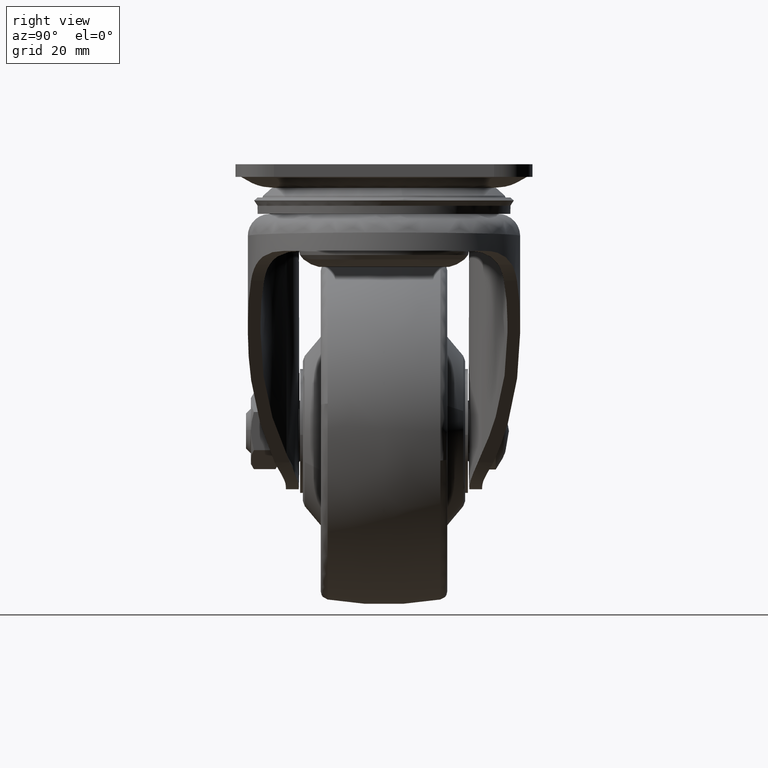
[diagram: clean part render]
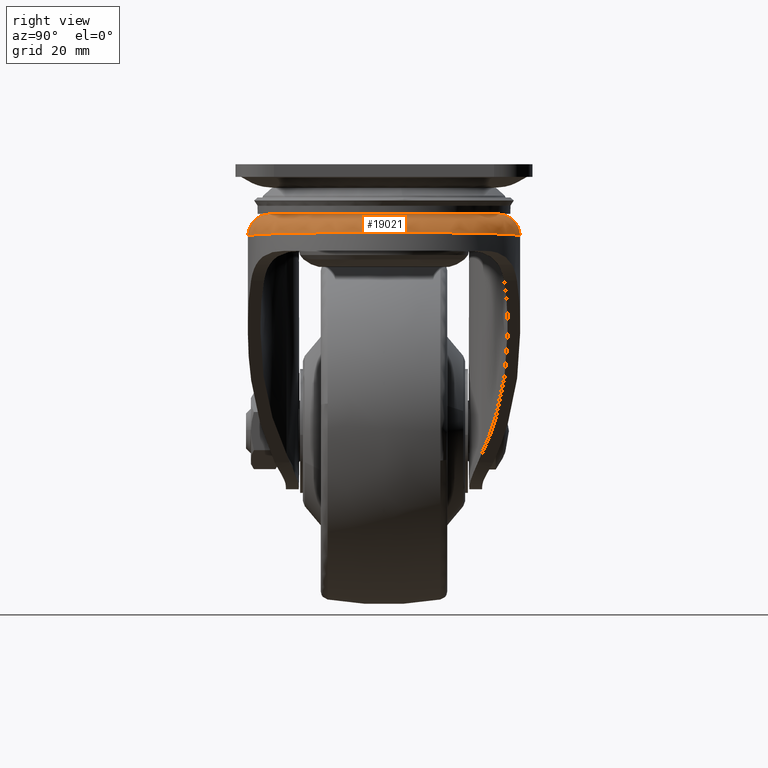
[diagram: same view with one face highlighted and labeled with its STEP entity id]
A machine part, right view. The second image highlights one B-rep face of the part: STEP entity #19021.
In plain terms, the highlighted face is a freeform B-spline surface patch.
Its self-contained STEP definition (entity closure, byte-faithful):
#17920=CARTESIAN_POINT('',(-0.371908392632483,-20.746666820178351,-9.038143999999999));
#17921=VERTEX_POINT('',#17920);
#17935=CARTESIAN_POINT('',(-0.371908392632533,20.746666820178351,-9.038143999999999));
#17936=VERTEX_POINT('',#17935);
#17937=CARTESIAN_POINT('',(-0.371908392632483,-20.746666820178351,-9.038143999999999));
#17938=CARTESIAN_POINT('',(0.310111829313165,-20.734656609830100,-9.038144000000001));
#17939=CARTESIAN_POINT('',(0.986389070026729,-20.690357468507340,-9.038144000000020));
#17940=CARTESIAN_POINT('',(2.327787379291789,-20.539035513552289,-9.038144000000024));
#17941=CARTESIAN_POINT('',(2.992907637295672,-20.432008142754530,-9.038144000000020));
#17942=CARTESIAN_POINT('',(4.312006746370648,-20.155312743828951,-9.038144000000024));
#17943=CARTESIAN_POINT('',(4.965986218059602,-19.985648205019050,-9.038144000000019));
#17944=CARTESIAN_POINT('',(5.776314059998352,-19.733387569091700,-9.038144000000024));
#17945=CARTESIAN_POINT('',(5.938021508014015,-19.680921971287479,-9.038144000000020));
#17946=CARTESIAN_POINT('',(6.260712274947871,-19.571919483522549,-9.038144000000020));
#17947=CARTESIAN_POINT('',(6.421754884003594,-19.515354365793630,-9.038144000000020));
#17948=CARTESIAN_POINT('',(6.901244632892142,-19.340439021349791,-9.038144000000020));
#17949=CARTESIAN_POINT('',(7.216900154775730,-19.216597069536672,-9.038144000000022));
#17950=CARTESIAN_POINT('',(8.152056588210165,-18.823742300994731,-9.038144000000022));
#17951=CARTESIAN_POINT('',(9.367491343316548,-18.243154913261350,-9.038144000000020));
#17952=CARTESIAN_POINT('',(10.520862944870990,-17.550482445976321,-9.038144000000020));
#17953=CARTESIAN_POINT('',(11.362279168001390,-16.988334331418301,-9.038144000000024));
#17954=CARTESIAN_POINT('',(11.638809140308229,-16.793832252205409,-9.038144000000020));
#17955=CARTESIAN_POINT('',(12.047585011716020,-16.491208756801999,-9.038144000000024));
#17956=CARTESIAN_POINT('',(12.182839993853580,-16.388521697266491,-9.038144000000020));
#17957=CARTESIAN_POINT('',(12.451319241664100,-16.179480136187539,-9.038144000000022));
#17958=CARTESIAN_POINT('',(12.584726993621601,-16.072972550384531,-9.038144000000019));
#17959=CARTESIAN_POINT('',(13.243716359350589,-15.533547669759480,-9.038144000000024));
#17960=CARTESIAN_POINT('',(13.745703946693940,-15.079781266730670,-9.038144000000020));
#17961=CARTESIAN_POINT('',(14.700722061925980,-14.129074833428101,-9.038144000000024));
#17962=CARTESIAN_POINT('',(15.153749198556721,-13.632131812515039,-9.038144000000017));
#17963=CARTESIAN_POINT('',(16.010889133507490,-12.595109817821580,-9.038144000000020));
#17964=CARTESIAN_POINT('',(16.415005057247829,-12.055033600246979,-9.038144000000019));
#17965=CARTESIAN_POINT('',(16.888740019221370,-11.352238928578229,-9.038144000000022));
#17966=CARTESIAN_POINT('',(16.981912920928089,-11.210291855222851,-9.038144000000019));
#17967=CARTESIAN_POINT('',(17.165074589125592,-10.923589723954990,-9.038144000000020));
#17968=CARTESIAN_POINT('',(17.255186156278981,-10.778628534644231,-9.038144000000022));
#17969=CARTESIAN_POINT('',(17.519647754276772,-10.341204070595360,-9.038144000000017));
#17970=CARTESIAN_POINT('',(17.688033460243531,-10.046416596260700,-9.038144000000019));
#17971=CARTESIAN_POINT('',(18.169874809759829,-9.152720936074458,-9.038144000000022));
#17972=CARTESIAN_POINT('',(18.750264049210131,-7.936281918196361,-9.038144000000022));
#17973=CARTESIAN_POINT('',(19.208550969658418,-6.670965681906028,-9.038144000000022));
#17974=CARTESIAN_POINT('',(19.505928584421380,-5.703429702171705,-9.038144000000022));
#17975=CARTESIAN_POINT('',(19.597318012715402,-5.377820832211666,-9.038144000000024));
#17976=CARTESIAN_POINT('',(19.722601074543672,-4.884683587551843,-9.038144000000019));
#17977=CARTESIAN_POINT('',(19.762394326124060,-4.719516813533725,-9.038144000000022));
#17978=CARTESIAN_POINT('',(19.838001006572899,-4.387590153544157,-9.038144000000019));
#17979=CARTESIAN_POINT('',(19.873846769291930,-4.220655644612763,-9.038144000000019));
#17980=CARTESIAN_POINT('',(20.042333218423870,-3.385371898940528,-9.038144000000026));
#17981=CARTESIAN_POINT('',(20.244204662840438,-2.041781170649532,-9.038144000000020));
#17982=CARTESIAN_POINT('',(20.312324603654758,-0.684092183101558,-9.038144000000020));
#17983=CARTESIAN_POINT('',(20.312435390379129,0.680765401885571,-9.038144000000024));
#17984=CARTESIAN_POINT('',(20.278488159685079,1.357420897028287,-9.038144000000022));
#17985=CARTESIAN_POINT('',(20.144998784287029,2.699505021124899,-9.038144000000024));
#17986=CARTESIAN_POINT('',(20.045449721321130,3.364947744408189,-9.038144000000022));
#17987=CARTESIAN_POINT('',(19.781201515590709,4.684712803392505,-9.038144000000024));
#17988=CARTESIAN_POINT('',(19.616504594464580,5.339035518302297,-9.038144000000022));
#17989=CARTESIAN_POINT('',(19.369027409387382,6.149837228847268,-9.038144000000022));
#17990=CARTESIAN_POINT('',(19.317446911827510,6.311641674517488,-9.038144000000020));
#17991=CARTESIAN_POINT('',(19.210073941024170,6.634531628870683,-9.038144000000020));
#17992=CARTESIAN_POINT('',(19.154198245064119,6.795842654728318,-9.038144000000020));
#17993=CARTESIAN_POINT('',(18.980903691396261,7.276702750768489,-9.038144000000019));
#17994=CARTESIAN_POINT('',(18.857875780785541,7.593121407276388,-9.038144000000020));
#17995=CARTESIAN_POINT('',(18.466771984821200,8.530176107110156,-9.038144000000024));
#17996=CARTESIAN_POINT('',(18.176727707134368,9.138639511977621,-9.038144000000024));
#17997=CARTESIAN_POINT('',(17.539223940579550,10.323752677950189,-9.038144000000022));
#17998=CARTESIAN_POINT('',(17.191762562970229,10.900401392507829,-9.038144000000024));
#17999=CARTESIAN_POINT('',(16.627175156399659,11.741329200653910,-9.038144000000024));
#18000=CARTESIAN_POINT('',(16.431734216972409,12.017623955235280,-9.038144000000020));
#18001=CARTESIAN_POINT('',(16.127546116646570,12.425956221480810,-9.038144000000020));
#18002=CARTESIAN_POINT('',(16.024311459639279,12.561048199573440,-9.038144000000022));
#18003=CARTESIAN_POINT('',(15.814127919645831,12.829174111214151,-9.038144000000020));
#18004=CARTESIAN_POINT('',(15.707157527082790,12.962222589929100,-9.038144000000022));
#18005=CARTESIAN_POINT('',(15.165974356405631,13.618656190648380,-9.038144000000026));
#18006=CARTESIAN_POINT('',(14.710518363722260,14.118666719233079,-9.038144000000022));
#18007=CARTESIAN_POINT('',(13.756085961286230,15.070088444843741,-9.038144000000020));
#18008=CARTESIAN_POINT('',(13.257105395372200,15.521495000676460,-9.038144000000020));
#18009=CARTESIAN_POINT('',(12.215856410150231,16.375968485076630,-9.038144000000019));
#18010=CARTESIAN_POINT('',(11.673589613144131,16.779037225271619,-9.038144000000024));
#18011=CARTESIAN_POINT('',(10.968091030182640,17.251979496183310,-9.038144000000022));
#18012=CARTESIAN_POINT('',(10.825604967698309,17.345019815301711,-9.038144000000022));
#18013=CARTESIAN_POINT('',(10.537832104179950,17.527972863534739,-9.038144000000020));
#18014=CARTESIAN_POINT('',(10.392934671078310,17.617634795172670,-9.038144000000022));
#18015=CARTESIAN_POINT('',(9.956102736091994,17.880699509193668,-9.038144000000020));
#18016=CARTESIAN_POINT('',(9.661665518583043,18.048417202818960,-9.038144000000020));
#18017=CARTESIAN_POINT('',(8.768893755536045,18.529040880454492,-9.038144000000020));
#18018=CARTESIAN_POINT('',(8.161120548119010,18.819468541503440,-9.038144000000020));
#18019=CARTESIAN_POINT('',(6.920842939203745,19.341426132661940,-9.038144000000020));
#18020=CARTESIAN_POINT('',(6.288338025941770,19.572954843998069,-9.038144000000024));
#18021=CARTESIAN_POINT('',(5.320857389087798,19.875658153784929,-9.038144000000020));
#18022=CARTESIAN_POINT('',(4.995238028468505,19.969115079046450,-9.038144000000022));
#18023=CARTESIAN_POINT('',(4.337652689320697,20.140914358361702,-9.038144000000020));
#18024=CARTESIAN_POINT('',(4.005135046614682,20.219345446843501,-9.038144000000022));
#18025=CARTESIAN_POINT('',(3.006171538072016,20.429870821315351,-9.038144000000022));
#18026=CARTESIAN_POINT('',(1.666133430569654,20.645987493705789,-9.038144000000042));
#18027=CARTESIAN_POINT('',(0.310137121063629,20.734656164448520,-9.038143999999999));
#18028=CARTESIAN_POINT('',(-0.371908392632441,20.746666820178351,-9.038143999999999));
#18029=B_SPLINE_CURVE_WITH_KNOTS('',3,(#17937,#17938,#17939,#17940,#17941,#17942,#17943,#17944,#17945,#17946,#17947,#17948,#17949,#17950,#17951,#17952,#17953,#17954,#17955,#17956,#17957,#17958,#17959,#17960,#17961,#17962,#17963,#17964,#17965,#17966,#17967,#17968,#17969,#17970,#17971,#17972,#17973,#17974,#17975,#17976,#17977,#17978,#17979,#17980,#17981,#17982,#17983,#17984,#17985,#17986,#17987,#17988,#17989,#17990,#17991,#17992,#17993,#17994,#17995,#17996,#17997,#17998,#17999,#18000,#18001,#18002,#18003,#18004,#18005,#18006,#18007,#18008,#18009,#18010,#18011,#18012,#18013,#18014,#18015,#18016,#18017,#18018,#18019,#18020,#18021,#18022,#18023,#18024,#18025,#18026,#18027,#18028),.UNSPECIFIED.,.F.,.U.,(4,2,2,2,2,2,2,1,2,2,2,2,2,2,2,2,2,2,1,2,2,2,2,1,2,2,2,2,2,2,2,2,2,2,2,2,2,2,2,2,2,2,2,2,2,2,1,4),(0.0,0.031250000000000,0.062500000000000,0.093750000000000,0.101562500000000,0.109375000000000,0.125000000000000,0.156250000000000,0.187500000000000,0.203125000000000,0.210937500000000,0.218750000000000,0.250000000000000,0.281250000000000,0.312500000000000,0.320312500000000,0.328125000000000,0.343750000000000,0.375000000000000,0.406250000000000,0.421875000000000,0.429687500000000,0.437500000000000,0.468750000000000,0.500000000000000,0.531250000000000,0.562499999999999,0.593749999999999,0.601562499999999,0.609374999999999,0.624999999999999,0.656250000000000,0.687500000000000,0.703125000000000,0.710937500000000,0.718750000000000,0.750000000000000,0.781250000000000,0.812500000000000,0.820312500000000,0.828125000000000,0.843750000000000,0.875000000000000,0.906250000000000,0.921875000000000,0.937500000000000,0.968750000000000,1.0),.UNSPECIFIED.);
#18030=EDGE_CURVE('',#17921,#17936,#18029,.T.);
#18525=CARTESIAN_POINT('',(-1.150086656081544,-24.748593863731795,-13.106458537314747));
#18526=CARTESIAN_POINT('',(-1.046314038446236,-24.748998996138283,-13.103322531421039));
#18527=CARTESIAN_POINT('',(-0.942540284437133,-24.749404132981226,-13.100186491186129));
#18528=CARTESIAN_POINT('',(0.802192063702615,-24.756215637123482,-13.047460723527845));
#18529=CARTESIAN_POINT('',(2.417904087485707,-24.604729629375790,-13.000504789412899));
#18530=CARTESIAN_POINT('',(4.804352100191892,-24.149071065818276,-12.933473158029660));
#18531=CARTESIAN_POINT('',(5.593627742778120,-23.958840504122609,-12.911697151369129));
#18532=CARTESIAN_POINT('',(7.159421216708891,-23.499801099100790,-12.869216319199440));
#18533=CARTESIAN_POINT('',(7.939338854639607,-23.229305134187690,-12.848425079935165));
#18534=CARTESIAN_POINT('',(10.212152411560291,-22.314282544708675,-12.788790667951890));
#18535=CARTESIAN_POINT('',(11.651092559535567,-21.565046605806220,-12.752320625999994));
#18536=CARTESIAN_POINT('',(13.695697033276561,-20.233884012984149,-12.701844778034047));
#18537=CARTESIAN_POINT('',(14.358135113605792,-19.755374643928565,-12.685729161838447));
#18538=CARTESIAN_POINT('',(15.643238081771365,-18.725975334869439,-12.654860239220822));
#18539=CARTESIAN_POINT('',(16.256408930557360,-18.182562195514691,-12.640334930360098));
#18540=CARTESIAN_POINT('',(18.003800067514735,-16.474415194778611,-12.599398492305820));
#18541=CARTESIAN_POINT('',(19.049774999068362,-15.230107753338746,-12.575530961128145));
#18542=CARTESIAN_POINT('',(20.436340070823050,-13.201998496588487,-12.544385074449197));
#18543=CARTESIAN_POINT('',(20.869353394552252,-12.495468507101380,-12.534754561813651));
#18544=CARTESIAN_POINT('',(21.654679263849058,-11.057321835389057,-12.517411268723132));
#18545=CARTESIAN_POINT('',(22.009299654534068,-10.322946810699314,-12.509646154631350));
#18546=CARTESIAN_POINT('',(22.643830421295629,-8.824159802559336,-12.495827194754908));
#18547=CARTESIAN_POINT('',(22.923739440063354,-8.059747317421962,-12.489773608071006));
#18548=CARTESIAN_POINT('',(23.408020581244642,-6.500565111213447,-12.479341495420059));
#18549=CARTESIAN_POINT('',(23.612734850372750,-5.704125844950372,-12.474955784027435));
#18550=CARTESIAN_POINT('',(24.106734956038579,-3.278164835235056,-12.464398291787367));
#18551=CARTESIAN_POINT('',(24.271441369023897,-1.643261048234187,-12.460912018214428));
#18552=CARTESIAN_POINT('',(24.270256864476423,1.660846410992469,-12.460937171862552));
#18553=CARTESIAN_POINT('',(24.104434566332696,3.284609746860099,-12.464447717112410));
#18554=CARTESIAN_POINT('',(23.618225701155779,5.679554768212552,-12.474838309376324));
#18555=CARTESIAN_POINT('',(23.416276038796042,6.471034580542466,-12.479164187864912));
#18556=CARTESIAN_POINT('',(23.052140336121063,7.647757438932564,-12.487007448588768));
#18557=CARTESIAN_POINT('',(22.920139669606630,8.039307502940300,-12.489856827257722));
#18558=CARTESIAN_POINT('',(22.637350641550150,8.813149290484429,-12.495979261116243));
#18559=CARTESIAN_POINT('',(22.486805143811786,9.194979346874616,-12.499247017374840));
#18560=CARTESIAN_POINT('',(21.689267829046639,11.079195574034756,-12.516615521869829));
#18561=CARTESIAN_POINT('',(20.909135385396997,12.507501032253591,-12.533768063874456));
#18562=CARTESIAN_POINT('',(19.758010765737914,14.194889613365236,-12.559621571414924));
#18563=CARTESIAN_POINT('',(19.518908057832132,14.527422869643717,-12.565015138280600));
#18564=CARTESIAN_POINT('',(19.022661438266677,15.182439302821118,-12.576267019383835));
#18565=CARTESIAN_POINT('',(18.764990207719588,15.505475992322195,-12.582137540250219));
#18566=CARTESIAN_POINT('',(17.973069265246629,16.449119537044876,-12.600278905137271));
#18567=CARTESIAN_POINT('',(17.417755766169275,17.047484967265746,-12.613127907958621));
#18568=CARTESIAN_POINT('',(15.672274645591081,18.753201623444355,-12.654019443499566));
#18569=CARTESIAN_POINT('',(14.403314015484158,19.772018781299597,-12.684379576265931));
#18570=CARTESIAN_POINT('',(12.682363265479150,20.893910021088260,-12.726860885860756));
#18571=CARTESIAN_POINT('',(12.331933772217244,21.110201075362994,-12.735572067984782));
#18572=CARTESIAN_POINT('',(11.625059439459838,21.522930535473900,-12.753277145497165));
#18573=CARTESIAN_POINT('',(11.267738381730648,21.719951351087719,-12.762292584323351));
#18574=CARTESIAN_POINT('',(10.184334504027364,22.283471051807371,-12.789839644963269));
#18575=CARTESIAN_POINT('',(9.446836755580234,22.622490794741985,-12.808871708462467));
#18576=CARTESIAN_POINT('',(7.941835778322210,23.228202010095984,-12.848360313953483));
#18577=CARTESIAN_POINT('',(7.174332470111257,23.494893944509471,-12.868816478275782));
#18578=CARTESIAN_POINT('',(5.608916478049688,23.954883774034627,-12.911277741599102));
#18579=CARTESIAN_POINT('',(4.807112542422640,24.148662026091372,-12.933394429955772));
#18580=CARTESIAN_POINT('',(2.401782440335783,24.607571061103574,-13.000959942209343));
#18581=CARTESIAN_POINT('',(0.788547485785725,24.755852254225253,-13.047876773943281));
#18582=CARTESIAN_POINT('',(-0.936535979763001,24.749446681969101,-13.100004825820372));
#18583=CARTESIAN_POINT('',(-1.039143935661006,24.749065678563365,-13.103105402085172));
#18584=CARTESIAN_POINT('',(-1.141750780643755,24.748684679282654,-13.106205944780642));
#18585=CARTESIAN_POINT('',(-1.150103150709226,-24.748678302727846,-13.078378776421710));
#18586=CARTESIAN_POINT('',(-1.046324489765321,-24.749061476369352,-13.075253395685547));
#18587=CARTESIAN_POINT('',(-0.942545258939056,-24.749444652115010,-13.072127997786900));
#18588=CARTESIAN_POINT('',(0.802194336317183,-24.755886614442581,-13.019583712949977));
#18589=CARTESIAN_POINT('',(2.417841765993048,-24.604080569057388,-12.972795000386183));
#18590=CARTESIAN_POINT('',(4.804116909853383,-24.147997606109723,-12.906010353475732));
#18591=CARTESIAN_POINT('',(5.593321769818844,-23.957634458783737,-12.884316527520706));
#18592=CARTESIAN_POINT('',(7.158950977643446,-23.498350794102517,-12.841998835681741));
#18593=CARTESIAN_POINT('',(7.938774509587208,-23.227742948976644,-12.821288815131405));
#18594=CARTESIAN_POINT('',(10.211281952960165,-22.312425074560881,-12.761892029656421));
#18595=CARTESIAN_POINT('',(11.649986920312216,-21.563045952666574,-12.725571099667771));
#18596=CARTESIAN_POINT('',(13.694215610792114,-20.231749334293085,-12.675306075459810));
#18597=CARTESIAN_POINT('',(14.356524184908853,-19.753208840068751,-12.659258804003764));
#18598=CARTESIAN_POINT('',(15.641363602110548,-18.723774986882802,-12.628522219324749));
#18599=CARTESIAN_POINT('',(16.254402403365358,-18.180358811353919,-12.614059843443028));
#18600=CARTESIAN_POINT('',(18.001402472258771,-16.472242584091674,-12.573302886953936));
#18601=CARTESIAN_POINT('',(19.047124417847328,-15.228008876900697,-12.549541619815516));
#18602=CARTESIAN_POINT('',(20.433339360553184,-13.200081035443066,-12.518536051818868));
#18603=CARTESIAN_POINT('',(20.866240356018523,-12.493623980902413,-12.508949296443198));
#18604=CARTESIAN_POINT('',(21.651358767153031,-11.055642055385642,-12.491685246684568));
#18605=CARTESIAN_POINT('',(22.005883529046308,-10.321359016042647,-12.483955804209440));
#18606=CARTESIAN_POINT('',(22.640240888506771,-8.822772386038677,-12.470200605253481));
#18607=CARTESIAN_POINT('',(22.920072183247139,-8.058468285213987,-12.464175068395001));
#18608=CARTESIAN_POINT('',(23.404217580863989,-6.499516722032385,-12.453791453072219));
#18609=CARTESIAN_POINT('',(23.608873776989764,-5.703199956851875,-12.449426194527382));
#18610=CARTESIAN_POINT('',(24.102732883350367,-3.277622061122763,-12.438918077038020));
#18611=CARTESIAN_POINT('',(24.267391383410143,-1.642988873972078,-12.435448163722496));
#18612=CARTESIAN_POINT('',(24.266207221557043,1.660571324813485,-12.435473199300292));
#18613=CARTESIAN_POINT('',(24.100433144508184,3.284066023868963,-12.438967270922682));
#18614=CARTESIAN_POINT('',(23.614363065473604,5.678632721004447,-12.449309268224955));
#18615=CARTESIAN_POINT('',(23.412470708650009,6.469990660955689,-12.453614971571897));
#18616=CARTESIAN_POINT('',(23.048437124315623,7.646539252872927,-12.461421751147107));
#18617=CARTESIAN_POINT('',(22.916473279892497,8.038032537122611,-12.464257904222176));
#18618=CARTESIAN_POINT('',(22.633762607609164,8.811764864942003,-12.470351973788848));
#18619=CARTESIAN_POINT('',(22.483258570498617,9.193542301249918,-12.473604620030626));
#18620=CARTESIAN_POINT('',(21.685938971956094,11.077506889948898,-12.490893131680039));
#18621=CARTESIAN_POINT('',(20.906014643979471,12.505646374793001,-12.507967235534633));
#18622=CARTESIAN_POINT('',(19.755181664441643,14.192883082733347,-12.533703707672137));
#18623=CARTESIAN_POINT('',(19.516138715771390,14.525388820328885,-12.539073008108943));
#18624=CARTESIAN_POINT('',(19.020014385628450,15.180356166013278,-12.550274449032564));
#18625=CARTESIAN_POINT('',(18.762405798006771,15.503371262994463,-12.556118750413003));
#18626=CARTESIAN_POINT('',(17.970674252143738,16.446960057380771,-12.574179500336346));
#18627=CARTESIAN_POINT('',(17.415489737151663,17.045301947261748,-12.586971800998327));
#18628=CARTESIAN_POINT('',(15.670398030169823,18.750988128872624,-12.627684971422497));
#18629=CARTESIAN_POINT('',(14.401701365291604,19.769837695065970,-12.657914807433842));
#18630=CARTESIAN_POINT('',(12.681068666256907,20.891841870536393,-12.700217169452673));
#18631=CARTESIAN_POINT('',(12.330701813498592,21.108159017879935,-12.708892063980914));
#18632=CARTESIAN_POINT('',(11.623949599375546,21.520947264717417,-12.726523861342054));
#18633=CARTESIAN_POINT('',(11.266688183084714,21.718000811992137,-12.735502227565558));
#18634=CARTESIAN_POINT('',(10.183458134710177,22.281628425307442,-12.762936988339419));
#18635=CARTESIAN_POINT('',(9.446069871922067,22.620733176933953,-12.781892385860941));
#18636=CARTESIAN_POINT('',(7.941271076875425,23.226639528523965,-12.821224304491420));
#18637=CARTESIAN_POINT('',(7.173860509684859,23.493441437787702,-12.841600548140830));
#18638=CARTESIAN_POINT('',(5.608609054755036,23.953675222805956,-12.883898710167641));
#18639=CARTESIAN_POINT('',(4.806877189145543,24.147588043950787,-12.905931919094497));
#18640=CARTESIAN_POINT('',(2.401721200069277,24.606924899144037,-12.973248504126731));
#18641=CARTESIAN_POINT('',(0.788549662975655,24.755526188322715,-13.019998310238673));
#18642=CARTESIAN_POINT('',(-0.936540834124133,24.749485933238383,-13.071946949539290));
#18643=CARTESIAN_POINT('',(-1.039154140856647,24.749126641625132,-13.075037002883072));
#18644=CARTESIAN_POINT('',(-1.141766890474527,24.748767351962574,-13.078127039450154));
#18645=CARTESIAN_POINT('',(-1.152476467513360,-24.760827742662087,-9.038144000000939));
#18646=CARTESIAN_POINT('',(-1.047827675288118,-24.758047842401922,-9.038144000000632));
#18647=CARTESIAN_POINT('',(-0.943260445633869,-24.755270108777484,-9.038144000000326));
#18648=CARTESIAN_POINT('',(0.802518914803431,-24.708895063303274,-9.038143999995222));
#18649=CARTESIAN_POINT('',(2.408992426750598,-24.511917260681077,-9.038143999997653));
#18650=CARTESIAN_POINT('',(4.770992660099807,-23.996811346879088,-9.038144000001203));
#18651=CARTESIAN_POINT('',(5.550341566129717,-23.788220552255343,-9.038144000000026));
#18652=CARTESIAN_POINT('',(7.093231413899059,-23.295659399901965,-9.038144000000026));
#18653=CARTESIAN_POINT('',(7.860097540800791,-23.009954210392106,-9.038144000000020));
#18654=CARTESIAN_POINT('',(10.090778882823633,-22.055283775177628,-9.038144000000020));
#18655=CARTESIAN_POINT('',(11.497574351058207,-21.287255551278019,-9.038144000000020));
#18656=CARTESIAN_POINT('',(13.491184823467686,-19.939188974314344,-9.038144000000020));
#18657=CARTESIAN_POINT('',(14.136150973894960,-19.456929338734938,-9.038143999999420));
#18658=CARTESIAN_POINT('',(15.385836004617428,-18.423825274742040,-9.038144000000621));
#18659=CARTESIAN_POINT('',(15.981323482680761,-17.880488582395657,-9.038144000000022));
#18660=CARTESIAN_POINT('',(17.676601416210509,-16.177920077513065,-9.038144000000022));
#18661=CARTESIAN_POINT('',(18.689006661850446,-14.944431481067470,-9.038144000001214));
#18662=CARTESIAN_POINT('',(20.029314484163503,-12.941908158827594,-9.038143999999425));
#18663=CARTESIAN_POINT('',(20.447537022576849,-12.245535414135251,-9.038144000000020));
#18664=CARTESIAN_POINT('',(21.205604958731893,-10.830143160979279,-9.038144000000020));
#18665=CARTESIAN_POINT('',(21.547683257852729,-10.108390275611034,-9.038143999999431));
#18666=CARTESIAN_POINT('',(22.159510523778163,-8.636961783589740,-9.038144000000614));
#18667=CARTESIAN_POINT('',(22.429257631045004,-7.887286485882913,-9.038144000000614));
#18668=CARTESIAN_POINT('',(22.895814957206657,-6.359363222974946,-9.038143999999427));
#18669=CARTESIAN_POINT('',(23.092954361867008,-5.579482120161734,-9.038143999999424));
#18670=CARTESIAN_POINT('',(23.568587265409839,-3.205179495432871,-9.038144000001225));
#18671=CARTESIAN_POINT('',(23.727055551969514,-1.606676274313892,-9.038143999998823));
#18672=CARTESIAN_POINT('',(23.725915634957897,1.623870126447678,-9.038144000001225));
#18673=CARTESIAN_POINT('',(23.566371521085543,3.211496423343384,-9.038143999998839));
#18674=CARTESIAN_POINT('',(23.098241500048545,5.555429683597092,-9.038144000000616));
#18675=CARTESIAN_POINT('',(22.903766468883163,6.330437376644023,-9.038144000000022));
#18676=CARTESIAN_POINT('',(22.552960203653836,7.483550174922576,-9.038144000000022));
#18677=CARTESIAN_POINT('',(22.425770262405713,7.867393400884736,-9.038144000000020));
#18678=CARTESIAN_POINT('',(22.153224868863546,8.626351702591503,-9.038144000000020));
#18679=CARTESIAN_POINT('',(22.008103584405241,9.001012968419541,-9.038143999999724));
#18680=CARTESIAN_POINT('',(21.239102253281789,10.850832678566867,-9.038144000001212));
#18681=CARTESIAN_POINT('',(20.486321875203693,12.256222849860931,-9.038144000001212));
#18682=CARTESIAN_POINT('',(19.373618870596335,13.922260947411710,-9.038143999999726));
#18683=CARTESIAN_POINT('',(19.142411890344430,14.250890843364905,-9.038144000000322));
#18684=CARTESIAN_POINT('',(18.662343172459806,14.898881571024683,-9.038143999999724));
#18685=CARTESIAN_POINT('',(18.412970325746226,15.218792899522191,-9.038144000000321));
#18686=CARTESIAN_POINT('',(17.646189788984934,16.154386459907045,-9.038143999999424));
#18687=CARTESIAN_POINT('',(17.108037760915956,16.749112529925252,-9.038144000000020));
#18688=CARTESIAN_POINT('',(15.414604486160686,18.449276006753959,-9.038144000000020));
#18689=CARTESIAN_POINT('',(14.181127963474996,19.471515335743366,-9.038144000000020));
#18690=CARTESIAN_POINT('',(12.503131136657213,20.607582778058244,-9.038144000000020));
#18691=CARTESIAN_POINT('',(12.161203709948325,20.827204091811385,-9.038143999999427));
#18692=CARTESIAN_POINT('',(11.470939905595037,21.247520799565642,-9.038144000000621));
#18693=CARTESIAN_POINT('',(11.121749441160688,21.448805375795100,-9.038144000000317));
#18694=CARTESIAN_POINT('',(10.062120887855473,22.026508555066364,-9.038143999999429));
#18695=CARTESIAN_POINT('',(9.339654321769462,22.376839772754824,-9.038144000001207));
#18696=CARTESIAN_POINT('',(7.862545023797241,23.008811138190659,-9.038143999998837));
#18697=CARTESIAN_POINT('',(7.107903514448644,23.290452005688319,-9.038144000000024));
#18698=CARTESIAN_POINT('',(5.565427301361491,23.783917881614691,-9.038144000000022));
#18699=CARTESIAN_POINT('',(4.773730308786812,23.996329655027601,-9.038143999999427));
#18700=CARTESIAN_POINT('',(2.393024904776602,24.515168028579218,-9.038144000001218));
#18701=CARTESIAN_POINT('',(0.788860628931289,24.708954507286336,-9.038143999998839));
#18702=CARTESIAN_POINT('',(-0.937238732142245,24.755128979212969,-9.038144000000102));
#18703=CARTESIAN_POINT('',(-1.040621886935831,24.757894557305608,-9.038144000000177));
#18704=CARTESIAN_POINT('',(-1.144084767269313,24.760662268117144,-9.038144000000255));
#18705=CARTESIAN_POINT('',(-1.087000801259078,-20.720587045853719,-9.038144000000017));
#18706=CARTESIAN_POINT('',(-0.999611105125389,-20.720900440975711,-9.038144000000015));
#18707=CARTESIAN_POINT('',(-0.912220926861917,-20.721213837826742,-9.038144000000020));
#18708=CARTESIAN_POINT('',(0.556985752705620,-20.726482676453909,-9.038144000000058));
#18709=CARTESIAN_POINT('',(1.917020021652036,-20.599275857118059,-9.038144000000033));
#18710=CARTESIAN_POINT('',(3.925188377947708,-20.217275260780202,-9.038144000000013));
#18711=CARTESIAN_POINT('',(4.589243163650422,-20.057849391931686,-9.038144000000019));
#18712=CARTESIAN_POINT('',(5.906423284187646,-19.673232878596831,-9.038144000000019));
#18713=CARTESIAN_POINT('',(6.562407439488129,-19.446629741394300,-9.038144000000020));
#18714=CARTESIAN_POINT('',(8.473795034660851,-18.680187039725840,-9.038144000000026));
#18715=CARTESIAN_POINT('',(9.683577288549099,-18.052725773319217,-9.038144000000020));
#18716=CARTESIAN_POINT('',(11.402224715781815,-16.938059054243066,-9.038144000000015));
#18717=CARTESIAN_POINT('',(11.958991841411722,-16.537394373989112,-9.038144000000026));
#18718=CARTESIAN_POINT('',(13.038996470995794,-15.675498140353874,-9.038144000000017));
#18719=CARTESIAN_POINT('',(13.554255722866646,-15.220526904805913,-9.038144000000020));
#18720=CARTESIAN_POINT('',(15.022502528111115,-13.790436933852087,-9.038144000000026));
#18721=CARTESIAN_POINT('',(15.901228293163866,-12.748740158105983,-9.038144000000010));
#18722=CARTESIAN_POINT('',(17.065963272806130,-11.050940109960710,-9.038144000000026));
#18723=CARTESIAN_POINT('',(17.429676684923269,-10.459492114379051,-9.038144000000019));
#18724=CARTESIAN_POINT('',(18.089287818842980,-9.255615543245574,-9.038144000000020));
#18725=CARTESIAN_POINT('',(18.387124689480498,-8.640877526606017,-9.038144000000024));
#18726=CARTESIAN_POINT('',(18.920032770011126,-7.386273448179945,-9.038144000000015));
#18727=CARTESIAN_POINT('',(19.155103120386979,-6.746406670954332,-9.038144000000013));
#18728=CARTESIAN_POINT('',(19.561796970342211,-5.441273875614285,-9.038144000000026));
#18729=CARTESIAN_POINT('',(19.733708010124456,-4.774610040977953,-9.038144000000022));
#18730=CARTESIAN_POINT('',(20.148543277114737,-2.743959761061658,-9.038144000000017));
#18731=CARTESIAN_POINT('',(20.286847423904874,-1.375476742988451,-9.038144000000031));
#18732=CARTESIAN_POINT('',(20.285852777879349,1.390196417302698,-9.038144000000006));
#18733=CARTESIAN_POINT('',(20.146611478164274,2.749354519723338,-9.038144000000026));
#18734=CARTESIAN_POINT('',(19.738318973926315,4.754042756573246,-9.038144000000019));
#18735=CARTESIAN_POINT('',(19.568729682940827,5.416555105973298,-9.038144000000017));
#18736=CARTESIAN_POINT('',(19.262932950521833,6.401544939128626,-9.038144000000019));
#18737=CARTESIAN_POINT('',(19.152078839455367,6.729298176875345,-9.038144000000019));
#18738=CARTESIAN_POINT('',(18.914588382416675,7.377058109753558,-9.038144000000019));
#18739=CARTESIAN_POINT('',(18.788155969131573,7.696678387020537,-9.038144000000022));
#18740=CARTESIAN_POINT('',(18.118346289820497,9.273920202217099,-9.038144000000012));
#18741=CARTESIAN_POINT('',(17.463114429463225,10.469556820836528,-9.038144000000010));
#18742=CARTESIAN_POINT('',(16.496158546665633,11.882121118180976,-9.038144000000024));
#18743=CARTESIAN_POINT('',(16.295303548023753,12.160498405024480,-9.038144000000015));
#18744=CARTESIAN_POINT('',(15.878424064026699,12.708845778787587,-9.038144000000024));
#18745=CARTESIAN_POINT('',(15.661956470486913,12.979279285177656,-9.038144000000019));
#18746=CARTESIAN_POINT('',(14.996644577710008,13.769270972703731,-9.038144000000022));
#18747=CARTESIAN_POINT('',(14.530080838928574,14.270218600184915,-9.038144000000022));
#18748=CARTESIAN_POINT('',(13.063431406848794,15.698280378645070,-9.038144000000015));
#18749=CARTESIAN_POINT('',(11.997022747350114,16.551314547647877,-9.038144000000017));
#18750=CARTESIAN_POINT('',(10.550443847772900,17.490738337599851,-9.038144000000019));
#18751=CARTESIAN_POINT('',(10.255866280889004,17.671857154726613,-9.038144000000028));
#18752=CARTESIAN_POINT('',(9.661619916010979,18.017481206424598,-9.038144000000015));
#18753=CARTESIAN_POINT('',(9.361214554000041,18.182474088617418,-9.038144000000022));
#18754=CARTESIAN_POINT('',(8.450322931719883,18.654405154706446,-9.038144000000029));
#18755=CARTESIAN_POINT('',(7.830185532190618,18.938347485247139,-9.038144000000013));
#18756=CARTESIAN_POINT('',(6.564507138667243,19.445705795095474,-9.038144000000028));
#18757=CARTESIAN_POINT('',(5.918965682457713,19.669121793372145,-9.038144000000022));
#18758=CARTESIAN_POINT('',(4.602105642771043,20.054533683689712,-9.038144000000017));
#18759=CARTESIAN_POINT('',(3.927511534203418,20.216932188251917,-9.038144000000020));
#18760=CARTESIAN_POINT('',(1.903453079153301,20.601658292796973,-9.038144000000008));
#18761=CARTESIAN_POINT('',(0.545495368642780,20.726181891670318,-9.038144000000026));
#18762=CARTESIAN_POINT('',(-0.907164665539428,20.721247969889930,-9.038144000000020));
#18763=CARTESIAN_POINT('',(-0.993573011191400,20.720954486205795,-9.038144000000022));
#18764=CARTESIAN_POINT('',(-1.079980885515477,20.720661004122523,-9.038144000000020));
#18765=CARTESIAN_POINT('',(-1.086543642347390,-20.692377603391034,-9.038144000000004));
#18766=CARTESIAN_POINT('',(-0.999274318133465,-20.692701447876697,-9.038144000000008));
#18767=CARTESIAN_POINT('',(-0.912004033810174,-20.693025295925203,-9.038144000000020));
#18768=CARTESIAN_POINT('',(0.555258655098661,-20.698470106402315,-9.038144000000084));
#18769=CARTESIAN_POINT('',(1.913539305727970,-20.571593830448677,-9.038144000000056));
#18770=CARTESIAN_POINT('',(3.919155224472632,-20.190315688981876,-9.038144000000008));
#18771=CARTESIAN_POINT('',(4.582369574412568,-20.031170501409491,-9.038144000000019));
#18772=CARTESIAN_POINT('',(5.897892168422342,-19.647193842268290,-9.038144000000026));
#18773=CARTESIAN_POINT('',(6.553056194073046,-19.420952176643311,-9.038144000000020));
#18774=CARTESIAN_POINT('',(8.462060732831773,-18.655694275718865,-9.038144000000019));
#18775=CARTESIAN_POINT('',(9.670357304810779,-18.029153281417504,-9.038144000000017));
#18776=CARTESIAN_POINT('',(11.386912112229853,-16.916060016298346,-9.038144000000019));
#18777=CARTESIAN_POINT('',(11.943003272052813,-16.515953962682868,-9.038144000000031));
#18778=CARTESIAN_POINT('',(13.021701161685202,-15.655244021060692,-9.038144000000012));
#18779=CARTESIAN_POINT('',(13.536339731726615,-15.200891750552053,-9.038144000000019));
#18780=CARTESIAN_POINT('',(15.002820142287856,-13.772731729049523,-9.038144000000019));
#18781=CARTESIAN_POINT('',(15.880499415504993,-12.732413818350445,-9.038144000000004));
#18782=CARTESIAN_POINT('',(17.043852624816044,-11.036830905243844,-9.038144000000031));
#18783=CARTESIAN_POINT('',(17.407135349950476,-10.446151602959947,-9.038144000000020));
#18784=CARTESIAN_POINT('',(18.065966553341230,-9.243832411117275,-9.038144000000020));
#18785=CARTESIAN_POINT('',(18.363452151778748,-8.629885877463284,-9.038144000000028));
#18786=CARTESIAN_POINT('',(18.895732342276162,-7.376891608320649,-9.038144000000010));
#18787=CARTESIAN_POINT('',(19.130526303701256,-6.737842874108257,-9.038144000000008));
#18788=CARTESIAN_POINT('',(19.536742275089654,-5.434374558063098,-9.038144000000029));
#18789=CARTESIAN_POINT('',(19.708451656291256,-4.768558643761496,-9.038144000000035));
#18790=CARTESIAN_POINT('',(20.122800248232448,-2.740488111871285,-9.038144000000001));
#18791=CARTESIAN_POINT('',(20.260942811944133,-1.373735820950730,-9.038144000000035));
#18792=CARTESIAN_POINT('',(20.259949330587492,1.388436869625865,-9.038144000000006));
#18793=CARTESIAN_POINT('',(20.120870725122820,2.745875947992607,-9.038144000000040));
#18794=CARTESIAN_POINT('',(19.713057212989799,4.748017485213347,-9.038144000000008));
#18795=CARTESIAN_POINT('',(19.543666846844339,5.409687271214218,-9.038144000000019));
#18796=CARTESIAN_POINT('',(19.238229524216024,6.393420618401650,-9.038144000000017));
#18797=CARTESIAN_POINT('',(19.127505724996325,6.720755360649965,-9.038144000000019));
#18798=CARTESIAN_POINT('',(18.890294675258811,7.367686890468651,-9.038144000000024));
#18799=CARTESIAN_POINT('',(18.764011092430085,7.686897793853127,-9.038144000000024));
#18800=CARTESIAN_POINT('',(18.094989745722931,9.262118181737733,-9.038144000000001));
#18801=CARTESIAN_POINT('',(17.440530647738182,10.456210176142376,-9.038144000000001));
#18802=CARTESIAN_POINT('',(16.474724994284895,11.866924577144358,-9.038144000000022));
#18803=CARTESIAN_POINT('',(16.274108781301937,12.144936868630138,-9.038144000000017));
#18804=CARTESIAN_POINT('',(15.857725630382182,12.692562866547997,-9.038144000000020));
#18805=CARTESIAN_POINT('',(15.641516069421728,12.962639399347697,-9.038144000000019));
#18806=CARTESIAN_POINT('',(14.976997972369830,13.751585136482333,-9.038144000000026));
#18807=CARTESIAN_POINT('',(14.510992594360628,14.251863858418163,-9.038144000000024));
#18808=CARTESIAN_POINT('',(13.046102453910949,15.678004596231956,-9.038144000000020));
#18809=CARTESIAN_POINT('',(11.980980599830481,16.529865813638324,-9.038144000000022));
#18810=CARTESIAN_POINT('',(10.536171275241241,17.467956713220158,-9.038144000000019));
#18811=CARTESIAN_POINT('',(10.241953787980894,17.648817276742136,-9.038144000000026));
#18812=CARTESIAN_POINT('',(9.648435571991010,17.993944212725722,-9.038144000000017));
#18813=CARTESIAN_POINT('',(9.348399121820835,18.158697537870868,-9.038144000000013));
#18814=CARTESIAN_POINT('',(8.438627798081777,18.629937323761137,-9.038144000000028));
#18815=CARTESIAN_POINT('',(7.819257297271930,18.913453528019666,-9.038144000000004));
#18816=CARTESIAN_POINT('',(6.555153315605600,19.420029613135679,-9.038144000000042));
#18817=CARTESIAN_POINT('',(5.910418850619946,19.643089397463044,-9.038144000000015));
#18818=CARTESIAN_POINT('',(4.595215805439910,20.027860505276397,-9.038144000000024));
#18819=CARTESIAN_POINT('',(3.921475366281719,20.189973346829930,-9.038144000000029));
#18820=CARTESIAN_POINT('',(1.899989540467456,20.573971666120581,-9.038144000000004));
#18821=CARTESIAN_POINT('',(0.543783609233470,20.698168244645100,-9.038144000000042));
#18822=CARTESIAN_POINT('',(-0.906954513911912,20.693060007466698,-9.038144000000022));
#18823=CARTESIAN_POINT('',(-0.993244371413006,20.692756169681530,-9.038144000000020));
#18824=CARTESIAN_POINT('',(-1.079533290314684,20.692452335201267,-9.038144000000013));
#18832=(BOUNDED_SURFACE()B_SPLINE_SURFACE(3,2,((#18525,#18585,#18645,#18705,#18765),(#18526,#18586,#18646,#18706,#18766),(#18527,#18587,#18647,#18707,#18767),(#18528,#18588,#18648,#18708,#18768),(#18529,#18589,#18649,#18709,#18769),(#18530,#18590,#18650,#18710,#18770),(#18531,#18591,#18651,#18711,#18771),(#18532,#18592,#18652,#18712,#18772),(#18533,#18593,#18653,#18713,#18773),(#18534,#18594,#18654,#18714,#18774),(#18535,#18595,#18655,#18715,#18775),(#18536,#18596,#18656,#18716,#18776),(#18537,#18597,#18657,#18717,#18777),(#18538,#18598,#18658,#18718,#18778),(#18539,#18599,#18659,#18719,#18779),(#18540,#18600,#18660,#18720,#18780),(#18541,#18601,#18661,#18721,#18781),(#18542,#18602,#18662,#18722,#18782),(#18543,#18603,#18663,#18723,#18783),(#18544,#18604,#18664,#18724,#18784),(#18545,#18605,#18665,#18725,#18785),(#18546,#18606,#18666,#18726,#18786),(#18547,#18607,#18667,#18727,#18787),(#18548,#18608,#18668,#18728,#18788),(#18549,#18609,#18669,#18729,#18789),(#18550,#18610,#18670,#18730,#18790),(#18551,#18611,#18671,#18731,#18791),(#18552,#18612,#18672,#18732,#18792),(#18553,#18613,#18673,#18733,#18793),(#18554,#18614,#18674,#18734,#18794),(#18555,#18615,#18675,#18735,#18795),(#18556,#18616,#18676,#18736,#18796),(#18557,#18617,#18677,#18737,#18797),(#18558,#18618,#18678,#18738,#18798),(#18559,#18619,#18679,#18739,#18799),(#18560,#18620,#18680,#18740,#18800),(#18561,#18621,#18681,#18741,#18801),(#18562,#18622,#18682,#18742,#18802),(#18563,#18623,#18683,#18743,#18803),(#18564,#18624,#18684,#18744,#18804),(#18565,#18625,#18685,#18745,#18805),(#18566,#18626,#18686,#18746,#18806),(#18567,#18627,#18687,#18747,#18807),(#18568,#18628,#18688,#18748,#18808),(#18569,#18629,#18689,#18749,#18809),(#18570,#18630,#18690,#18750,#18810),(#18571,#18631,#18691,#18751,#18811),(#18572,#18632,#18692,#18752,#18812),(#18573,#18633,#18693,#18753,#18813),(#18574,#18634,#18694,#18754,#18814),(#18575,#18635,#18695,#18755,#18815),(#18576,#18636,#18696,#18756,#18816),(#18577,#18637,#18697,#18757,#18817),(#18578,#18638,#18698,#18758,#18818),(#18579,#18639,#18699,#18759,#18819),(#18580,#18640,#18700,#18760,#18820),(#18581,#18641,#18701,#18761,#18821),(#18582,#18642,#18702,#18762,#18822),(#18583,#18643,#18703,#18763,#18823),(#18584,#18644,#18704,#18764,#18824)),.UNSPECIFIED.,.F.,.F.,.U.)B_SPLINE_SURFACE_WITH_KNOTS((4,2,2,2,2,2,2,2,2,2,2,2,2,2,2,2,2,2,2,2,2,2,2,2,2,2,2,2,2,4),(3,1,1,3),(0.0,0.312922122221972,5.260598993024257,7.734437428425395,10.208275863826531,15.155952734628810,17.629791170029950,20.103629605431092,25.051306476233361,27.525144911634509,29.998983347035651,32.472821782436782,34.946660217837930,39.894337088640214,44.842013959442482,47.315852394843631,48.552771612544191,49.789690830244780,54.737367701047049,55.974286918747623,57.211206136448197,59.685044571849332,64.632721442651615,65.869640660352175,67.106559878052764,69.580398313453884,72.054236748855018,74.528075184256167,79.475752055058436,79.788683163269013),(0.0,0.066420401763098,6.708142367155589,6.774874351449719),.UNSPECIFIED.)GEOMETRIC_REPRESENTATION_ITEM()RATIONAL_B_SPLINE_SURFACE(((1.005879346400718,1.002939673200359,0.706046763530007,1.002953463403246,1.005906926806493),(1.005873838963205,1.002936919481603,0.706322122212960,1.002950696766612,1.005901393533224),(1.005868331525692,1.002934165762846,0.706597480895914,1.002947930129977,1.005895860259954),(1.005775744846208,1.002887872423104,0.711226593085172,1.002901419625093,1.005802839250187),(1.005694093283652,1.002847046641826,0.715308975622326,1.002860402327355,1.005720804654709),(1.005578444608350,1.002789222304175,0.721091132359055,1.002802306731882,1.005604613463764),(1.005541036165136,1.002770518082568,0.722961464910449,1.002783514767525,1.005567029535050),(1.005468335221033,1.002734167610517,0.726596337965520,1.002746993772987,1.005493987545973),(1.005432896630691,1.002716448315345,0.728368182591961,1.002729191355421,1.005458382710842),(1.005331606531501,1.002665803265751,0.733432444918054,1.002678308726523,1.005356617453047),(1.005270135287231,1.002635067643616,0.736505859881441,1.002647428921537,1.005294857843074),(1.005185508883389,1.002592754441694,0.740736977356904,1.002604917225566,1.005209834451131),(1.005158573812845,1.002579286906422,0.742083666363007,1.002591386513188,1.005182773026376),(1.005107112781566,1.002553556390783,0.744656594655631,1.002565535293985,1.005131070587970),(1.005082966549199,1.002541483274599,0.745863848433356,1.002553405542009,1.005106811084018),(1.005015066647279,1.002507533323639,0.749258680879867,1.002519296329566,1.005038592659133),(1.004975684519991,1.002487842259995,0.751227692907111,1.002499512893831,1.004999025787661),(1.004924443909303,1.002462221954652,0.753789600698168,1.002473772401927,1.004947544803854),(1.004908630411264,1.002454315205632,0.754580237719996,1.002465828561821,1.004931657123642),(1.004880190206818,1.002440095103409,0.756002179815742,1.002451541752151,1.004903083504302),(1.004867477087986,1.002433738543993,0.756637805303966,1.002445155373691,1.004890310747382),(1.004844875474398,1.002422437737199,0.757767831842790,1.002433801554059,1.004867603108118),(1.004834987344280,1.002417493672140,0.758262214662314,1.002428834296062,1.004857668592124),(1.004817959684169,1.002408979842085,0.759113556879295,1.002420280527062,1.004840561054124),(1.004810808385434,1.002405404192717,0.759471104685644,1.002416688104085,1.004833376208169),(1.004793601311627,1.002396800655813,0.760331417157629,1.002408044207416,1.004816088414833),(1.004787929080562,1.002393964540281,0.760615015123414,1.002405194787477,1.004810389574955),(1.004787970029352,1.002393985014676,0.760612967782035,1.002405215357919,1.004810430715837),(1.004793681941543,1.002396840970771,0.760327385854970,1.002408084711495,1.004816169422989),(1.004810616879406,1.002405308439703,0.759480679528262,1.002416591901887,1.004833183803775),(1.004817670435779,1.002408835217890,0.759128018605909,1.002420135224426,1.004840270448851),(1.004830472192011,1.002415236096005,0.758487961460064,1.002426566129487,1.004853132258974),(1.004835124831105,1.002417562415552,0.758255340650439,1.002428903361954,1.004857806723908),(1.004845127403738,1.002422563701869,0.757755235979265,1.002433928109638,1.004867856219275),(1.004850468683901,1.002425234341950,0.757488184765760,1.002436611277870,1.004873222555740),(1.004878876189788,1.002439438094894,0.756067877519630,1.002450881661565,1.004901763323130),(1.004906979394382,1.002453489697191,0.754662784609194,1.002464999180865,1.004929998361730),(1.004949509760133,1.002474754880066,0.752536368200185,1.002486364120130,1.004972728240261),(1.004958390135481,1.002479195067740,0.752092370705119,1.002490825137021,1.004981650274041),(1.004976934533852,1.002488467266926,0.751165195208389,1.002500140832710,1.005000281665421),(1.004986618786296,1.002493309393148,0.750681005784138,1.002505005673669,1.005010011347338),(1.005016577881768,1.002508288940884,0.749183122775480,1.002520055491462,1.005040110982924),(1.005037837974090,1.002518918987045,0.748120169086404,1.002530735403878,1.005061470807756),(1.005105666988757,1.002552833494379,0.744728880832760,1.002564809006426,1.005129618012851),(1.005156232526107,1.002578116263054,0.742200725091474,1.002590210378254,1.005180420756507),(1.005227447925508,1.002613723962754,0.738640125713005,1.002625985116046,1.005251970232092),(1.005242073356021,1.002621036678011,0.737908889221528,1.002633332135737,1.005266664271475),(1.005271846519669,1.002635923259835,0.736420302358673,1.002648288551509,1.005296577103017),(1.005287030381561,1.002643515190780,0.735661145635992,1.002655916096708,1.005311832193417),(1.005333503409977,1.002666751704989,0.733337605538069,1.002679261614953,1.005358523229907),(1.005365711985345,1.002682855992673,0.731727253923081,1.002695441448924,1.005390882897848),(1.005432786882446,1.002716393441223,0.728373669741285,1.002729136223881,1.005458272447761),(1.005467652775725,1.002733826387862,0.726630458596196,1.002746650949634,1.005493301899269),(1.005540316591858,1.002770158295929,0.722997441850678,1.002783153293103,1.005566306586205),(1.005578308330951,1.002789154165476,0.721097945902559,1.002802238273540,1.005604476547079),(1.005694879575431,1.002847439787716,0.715269662916884,1.002860797317518,1.005721594635035),(1.005776474252018,1.002888237126009,0.711190124541925,1.002901786038844,1.005803572077687),(1.005868012542894,1.002934006271447,0.706613429271743,1.002947769890393,1.005895539780786),(1.005873457764990,1.002936728882495,0.706341181210577,1.002950505273391,1.005901010546782),(1.005878902987087,1.002939451493543,0.706068933149411,1.002953240656389,1.005906481312779)))REPRESENTATION_ITEM('')SURFACE());
#18833=CARTESIAN_POINT('',(-0.372440675660812,-24.747181620888700,-13.026846269530299));
#18834=VERTEX_POINT('',#18833);
#18835=CARTESIAN_POINT('',(-0.371908392632483,-20.746666820178351,-9.038143999999999));
#18836=CARTESIAN_POINT('',(-0.371910953878056,-20.762912193142022,-9.038143999999999));
#18837=CARTESIAN_POINT('',(-0.371913514992813,-20.779156736377850,-9.038242932149862));
#18838=CARTESIAN_POINT('',(-0.371918636960720,-20.811644163527909,-9.038638644596555));
#18839=CARTESIAN_POINT('',(-0.371921223265480,-20.828090547176760,-9.038938664493122));
#18840=CARTESIAN_POINT('',(-0.371928962212803,-20.877474667850670,-9.040147139945340));
#18841=CARTESIAN_POINT('',(-0.371944345555249,-20.976099053993199,-9.043780857952520));
#18842=CARTESIAN_POINT('',(-0.371959451690182,-21.074294755731781,-9.051040507174314));
#18843=CARTESIAN_POINT('',(-0.371989306254998,-21.270118301760341,-9.070362900912262));
#18844=CARTESIAN_POINT('',(-0.372008733122127,-21.399911567817181,-9.089636962912504));
#18845=CARTESIAN_POINT('',(-0.372037204529266,-21.593457728959709,-9.128222107571816));
#18846=CARTESIAN_POINT('',(-0.372046594162144,-21.657858121506191,-9.142725151105738));
#18847=CARTESIAN_POINT('',(-0.372064997829179,-21.785166210277978,-9.174706432854217));
#18848=CARTESIAN_POINT('',(-0.372074031475944,-21.848204662898478,-9.192206458648609));
#18849=CARTESIAN_POINT('',(-0.372100651615123,-22.035504786900219,-9.249157353546432));
#18850=CARTESIAN_POINT('',(-0.372134864892346,-22.280406175905611,-9.336939851184344));
#18851=CARTESIAN_POINT('',(-0.372166720365878,-22.515764886628489,-9.448120281437836));
#18852=CARTESIAN_POINT('',(-0.372189781936038,-22.688647849166461,-9.540420976720760));
#18853=CARTESIAN_POINT('',(-0.372197330592846,-22.745668415800001,-9.572676408349468));
#18854=CARTESIAN_POINT('',(-0.372212157421564,-22.858472145365450,-9.640221292817545));
#18855=CARTESIAN_POINT('',(-0.372219433799212,-22.914247881396040,-9.675520406860425));
#18856=CARTESIAN_POINT('',(-0.372254767164265,-23.186934434085220,-9.857643307850612));
#18857=CARTESIAN_POINT('',(-0.372280039465490,-23.387987403183018,-10.022655147870880));
#18858=CARTESIAN_POINT('',(-0.372314089730538,-23.664488172957078,-10.298504090983039));
#18859=CARTESIAN_POINT('',(-0.372324791055862,-23.752445633834441,-10.395209133746590));
#18860=CARTESIAN_POINT('',(-0.372339902072054,-23.877861203115529,-10.547632991011470));
#18861=CARTESIAN_POINT('',(-0.372344769950530,-23.918478382083290,-10.599565263696739));
#18862=CARTESIAN_POINT('',(-0.372354097138616,-23.996666891134559,-10.704759580792640));
#18863=CARTESIAN_POINT('',(-0.372358569268726,-24.034343526978429,-10.758147608694211));
#18864=CARTESIAN_POINT('',(-0.372380010197854,-24.215748354438428,-11.028980871659121));
#18865=CARTESIAN_POINT('',(-0.372394251223966,-24.338739928786410,-11.257994771342441));
#18866=CARTESIAN_POINT('',(-0.372411569846057,-24.489706628794931,-11.620216322403190));
#18867=CARTESIAN_POINT('',(-0.372416679899947,-24.534555565684890,-11.744740237135630));
#18868=CARTESIAN_POINT('',(-0.372425363443288,-24.611063713376200,-11.995275109012660));
#18869=CARTESIAN_POINT('',(-0.372428962547644,-24.642944339215369,-12.121646518040061));
#18870=CARTESIAN_POINT('',(-0.372437629088791,-24.719888255888151,-12.503999501532061));
#18871=CARTESIAN_POINT('',(-0.372440592296263,-24.746436850076311,-12.763188088404711));
#18872=CARTESIAN_POINT('',(-0.372440675660806,-24.747181620888700,-13.026846269530299));
#18873=B_SPLINE_CURVE_WITH_KNOTS('',3,(#18835,#18836,#18837,#18838,#18839,#18840,#18841,#18842,#18843,#18844,#18845,#18846,#18847,#18848,#18849,#18850,#18851,#18852,#18853,#18854,#18855,#18856,#18857,#18858,#18859,#18860,#18861,#18862,#18863,#18864,#18865,#18866,#18867,#18868,#18869,#18870,#18871,#18872),.UNSPECIFIED.,.F.,.U.,(4,2,2,1,2,2,2,2,1,2,2,2,2,2,2,2,2,2,2,4),(0.0,0.007812500000000,0.015625000000000,0.031250000000000,0.062500000000000,0.125000000000000,0.156249999999999,0.187499999999998,0.249999999999998,0.312499999999998,0.343749999999998,0.374999999999998,0.499999999999999,0.562500000000000,0.593749999999999,0.624999999999999,0.750000000000000,0.812500000000000,0.875000000000000,1.0),.UNSPECIFIED.);
#18874=EDGE_CURVE('',#17921,#18834,#18873,.T.);
#18875=ORIENTED_EDGE('',*,*,#18874,.T.);
#18876=CARTESIAN_POINT('',(-0.372440675660818,24.747181620888700,-13.026846269530299));
#18877=VERTEX_POINT('',#18876);
#18878=CARTESIAN_POINT('',(-0.372440675660818,24.747181620888700,-13.026846269530290));
#18879=CARTESIAN_POINT('',(0.440611724388907,24.735058953904229,-13.002621569748310));
#18880=CARTESIAN_POINT('',(2.057056108158417,24.632912125437262,-12.955368047180601));
#18881=CARTESIAN_POINT('',(3.654481582511738,24.377426751327281,-12.910339474762051));
#18882=CARTESIAN_POINT('',(4.646854719385692,24.169242334271949,-12.882848893789211));
#18883=CARTESIAN_POINT('',(4.845027792070344,24.125174792992929,-12.877383424593280));
#18884=CARTESIAN_POINT('',(5.240766254255058,24.032141859027160,-12.866516834224640));
#18885=CARTESIAN_POINT('',(5.437873170715581,23.983281716566388,-12.861128323905559));
#18886=CARTESIAN_POINT('',(6.026036586220955,23.829954936523698,-12.845118083854720));
#18887=CARTESIAN_POINT('',(6.414320161014407,23.718656586665869,-12.834641051885770));
#18888=CARTESIAN_POINT('',(7.567877569116020,23.357955061911820,-12.803771847766351));
#18889=CARTESIAN_POINT('',(8.321883789799191,23.081806411680301,-12.783940481027800));
#18890=CARTESIAN_POINT('',(9.800160806485243,22.458933584770332,-12.745656254595090));
#18891=CARTESIAN_POINT('',(10.524431998341370,22.112210336946109,-12.727203550112639));
#18892=CARTESIAN_POINT('',(11.588159873335121,21.538303178870539,-12.700495188516729));
#18893=CARTESIAN_POINT('',(11.938949516070140,21.338014995537701,-12.691754427028650));
#18894=CARTESIAN_POINT('',(12.459345211957359,21.023845286672849,-12.678880540692971));
#18895=CARTESIAN_POINT('',(12.631921617884119,20.916782610325949,-12.674626926164891));
#18896=CARTESIAN_POINT('',(12.974799323859250,20.698224176538059,-12.666205900568370));
#18897=CARTESIAN_POINT('',(13.144559338271600,20.587076138750199,-12.662051766173780));
#18898=CARTESIAN_POINT('',(13.985052402325270,20.022089010303269,-12.641555707976380));
#18899=CARTESIAN_POINT('',(14.630924358473260,19.540575820111549,-12.626035363196340));
#18900=CARTESIAN_POINT('',(15.870865666271730,18.519888232523378,-12.596599484579800));
#18901=CARTESIAN_POINT('',(16.464932716011869,17.980711267173032,-12.582684239945969));
#18902=CARTESIAN_POINT('',(17.601029243075789,16.844437278620870,-12.556363149145600));
#18903=CARTESIAN_POINT('',(18.143063398963481,16.247345457603430,-12.543957367954190));
#18904=CARTESIAN_POINT('',(18.787002197024350,15.463579720108310,-12.529362944545060));
#18905=CARTESIAN_POINT('',(18.914277065058052,15.304728890703799,-12.526485959565809));
#18906=CARTESIAN_POINT('',(19.164356084206101,14.984601708192400,-12.520847040006940));
#18907=CARTESIAN_POINT('',(19.287180645495770,14.823314504735389,-12.518084616075299));
#18908=CARTESIAN_POINT('',(19.649076933785491,14.335819344940040,-12.509964580825249));
#18909=CARTESIAN_POINT('',(19.881575298342579,14.005980067549070,-12.504774074941180));
#18910=CARTESIAN_POINT('',(20.553161683264008,13.002149688804950,-12.489845124773250));
#18911=CARTESIAN_POINT('',(20.966401068042568,12.313879230792770,-12.480747415518000));
#18912=CARTESIAN_POINT('',(21.724483102836409,10.899555380237571,-12.464170773011590));
#18913=CARTESIAN_POINT('',(22.069327735530230,10.173503081082931,-12.456691945955731));
#18914=CARTESIAN_POINT('',(22.534261103553021,9.055515718929861,-12.446662981024030));
#18915=CARTESIAN_POINT('',(22.680501256820492,8.678026619796150,-12.443518643896940));
#18916=CARTESIAN_POINT('',(22.886477110709460,8.104399545456579,-12.439101062289600));
#18917=CARTESIAN_POINT('',(22.952886204934661,7.911979689815991,-12.437678770336900));
#18918=CARTESIAN_POINT('',(23.080499777039559,7.526822559696369,-12.434948944049660));
#18919=CARTESIAN_POINT('',(23.141802558073909,7.333817834835044,-12.433639299912510));
#18920=CARTESIAN_POINT('',(23.435921371192212,6.366684680750558,-12.427362807400140));
#18921=CARTESIAN_POINT('',(23.631642584458049,5.586243059449458,-12.423208536471099));
#18922=CARTESIAN_POINT('',(23.945644647126240,4.012180324721764,-12.416558904906291));
#18923=CARTESIAN_POINT('',(24.063922758030120,3.218558744929885,-12.414063686855521));
#18924=CARTESIAN_POINT('',(24.222505467309791,1.618045439467347,-12.410720816700900));
#18925=CARTESIAN_POINT('',(24.262818158011331,0.811131282815765,-12.409872994650479));
#18926=CARTESIAN_POINT('',(24.262644910200589,-0.816352638884281,-12.409876640996020));
#18927=CARTESIAN_POINT('',(24.222157558756351,-1.625848502900924,-12.410728122656950));
#18928=CARTESIAN_POINT('',(24.061714188779220,-3.236488095114522,-12.414110271038570));
#18929=CARTESIAN_POINT('',(23.941757336049811,-4.037631735713599,-12.416640921160750));
#18930=CARTESIAN_POINT('',(23.741520408332580,-5.033775697290229,-12.420881735322981));
#18931=CARTESIAN_POINT('',(23.698919708929289,-5.232860496898542,-12.421784637725180));
#18932=CARTESIAN_POINT('',(23.609062477076080,-5.628728337435093,-12.423690885562859));
#18933=CARTESIAN_POINT('',(23.561767838188938,-5.825717997849346,-12.424695037157800));
#18934=CARTESIAN_POINT('',(23.412863839742680,-6.413885316063284,-12.427859757790840));
#18935=CARTESIAN_POINT('',(23.304238773259510,-6.802263057014298,-12.430172473976659));
#18936=CARTESIAN_POINT('',(22.950756029228430,-7.956378244829735,-12.437717192881239));
#18937=CARTESIAN_POINT('',(22.678355069623429,-8.711123307140467,-12.443553933635179));
#18938=CARTESIAN_POINT('',(22.060894904028441,-10.191615444387621,-12.456874706331400));
#18939=CARTESIAN_POINT('',(21.715836594551941,-10.917362878320819,-12.464358579180830));
#18940=CARTESIAN_POINT('',(21.142821199265001,-11.983862254279121,-12.476890375856470));
#18941=CARTESIAN_POINT('',(20.942561852878150,-12.335668606887950,-12.481285792935770));
#18942=CARTESIAN_POINT('',(20.628019527630610,-12.857729363304520,-12.488219778797029));
#18943=CARTESIAN_POINT('',(20.520842700610562,-13.030739677922350,-12.490587297372929));
#18944=CARTESIAN_POINT('',(20.302982569186341,-13.372932938147740,-12.495410475938391));
#18945=CARTESIAN_POINT('',(20.192153910678080,-13.542360664906511,-12.497869336561459));
#18946=CARTESIAN_POINT('',(19.628622760985468,-14.381247107711930,-12.510400625056180));
#18947=CARTESIAN_POINT('',(19.147825293040210,-15.026009552355079,-12.521182034432091));
#18948=CARTESIAN_POINT('',(18.127839972918149,-16.264205901095259,-12.544305629437879));
#18949=CARTESIAN_POINT('',(17.588648694292459,-16.857636796936170,-12.556647718356119));
#18950=CARTESIAN_POINT('',(16.451751515908530,-17.993058904752129,-12.582991936945501));
#18951=CARTESIAN_POINT('',(15.854050051296831,-18.535054020180919,-12.596993714535390));
#18952=CARTESIAN_POINT('',(15.069229433694209,-19.179410308464139,-12.615631483345901));
#18953=CARTESIAN_POINT('',(14.910366133642400,-19.306616986642350,-12.619416262464220));
#18954=CARTESIAN_POINT('',(14.590647432683671,-19.556284377688161,-12.627058834948890));
#18955=CARTESIAN_POINT('',(14.429571725658040,-19.678929032989259,-12.630921848343130));
#18956=CARTESIAN_POINT('',(13.942736649699709,-20.040369755954028,-12.642637214371939));
#18957=CARTESIAN_POINT('',(13.613371540598481,-20.272676566159820,-12.650615822892970));
#18958=CARTESIAN_POINT('',(12.611096709255520,-20.944077201206319,-12.675068430936960));
#18959=CARTESIAN_POINT('',(11.236982829191280,-21.771341465098711,-12.709047864584679));
#18960=CARTESIAN_POINT('',(9.788360673498477,-22.464498548169971,-12.745957511023869));
#18961=CARTESIAN_POINT('',(8.673540646299848,-22.933329514673161,-12.774835558617060));
#18962=CARTESIAN_POINT('',(8.297200293374120,-23.081085767210350,-12.784661203302999));
#18963=CARTESIAN_POINT('',(7.725460568428220,-23.289706964346159,-12.799714524626021));
#18964=CARTESIAN_POINT('',(7.533443417896143,-23.357151575895990,-12.804790988175240));
#18965=CARTESIAN_POINT('',(7.148832005041276,-23.487037730400981,-12.815002220639190));
#18966=CARTESIAN_POINT('',(6.956094080942037,-23.549538194950220,-12.820140720073059));
#18967=CARTESIAN_POINT('',(5.990266558547378,-23.849957863401070,-12.845999820538911));
#18968=CARTESIAN_POINT('',(5.210778602555660,-24.051715757596050,-12.867219592562231));
#18969=CARTESIAN_POINT('',(3.638490633922808,-24.379981741514879,-12.910790246817291));
#18970=CARTESIAN_POINT('',(2.845689940842522,-24.506486004779180,-12.933141061186550));
#18971=CARTESIAN_POINT('',(1.246739292850684,-24.684021726651270,-12.979057108379971));
#18972=CARTESIAN_POINT('',(0.440590413388129,-24.735059271652720,-13.002622204704430));
#18973=CARTESIAN_POINT('',(-0.372440675660822,-24.747181620888700,-13.026846269530290));
#18974=B_SPLINE_CURVE_WITH_KNOTS('',3,(#18878,#18879,#18880,#18881,#18882,#18883,#18884,#18885,#18886,#18887,#18888,#18889,#18890,#18891,#18892,#18893,#18894,#18895,#18896,#18897,#18898,#18899,#18900,#18901,#18902,#18903,#18904,#18905,#18906,#18907,#18908,#18909,#18910,#18911,#18912,#18913,#18914,#18915,#18916,#18917,#18918,#18919,#18920,#18921,#18922,#18923,#18924,#18925,#18926,#18927,#18928,#18929,#18930,#18931,#18932,#18933,#18934,#18935,#18936,#18937,#18938,#18939,#18940,#18941,#18942,#18943,#18944,#18945,#18946,#18947,#18948,#18949,#18950,#18951,#18952,#18953,#18954,#18955,#18956,#18957,#18958,#18959,#18960,#18961,#18962,#18963,#18964,#18965,#18966,#18967,#18968,#18969,#18970,#18971,#18972,#18973),.UNSPECIFIED.,.F.,.U.,(4,1,2,2,2,2,2,2,2,2,2,2,2,2,2,2,2,2,2,2,2,2,2,2,2,2,2,2,2,2,2,2,2,2,2,2,2,2,2,2,2,1,2,2,2,2,2,2,4),(0.0,0.031250000000000,0.062500000000000,0.070312500000000,0.078125000000000,0.093750000000000,0.125000000000000,0.156250000000000,0.171875000000000,0.179687500000000,0.187500000000000,0.218750000000000,0.250000000000001,0.281250000000001,0.289062500000001,0.296875000000001,0.312500000000001,0.343750000000001,0.375000000000002,0.390625000000002,0.398437500000002,0.406250000000002,0.437500000000002,0.468750000000002,0.500000000000002,0.531250000000002,0.562500000000001,0.570312500000001,0.578125000000001,0.593750000000001,0.625000000000001,0.656250000000001,0.671875000000001,0.679687500000001,0.687500000000001,0.718750000000001,0.750000000000001,0.781250000000000,0.789062500000000,0.796875000000000,0.812500000000000,0.843750000000000,0.875000000000000,0.890625000000000,0.898437500000000,0.906250000000000,0.937500000000000,0.968750000000000,1.0),.UNSPECIFIED.);
#18975=EDGE_CURVE('',#18877,#18834,#18974,.T.);
#18976=ORIENTED_EDGE('',*,*,#18975,.F.);
#18977=CARTESIAN_POINT('',(-0.372440675660818,24.747181620888700,-13.026846269530299));
#18978=CARTESIAN_POINT('',(-0.372440592296275,24.746436850076300,-12.763188088404849));
#18979=CARTESIAN_POINT('',(-0.372437629088770,24.719888255888179,-12.503999501532350));
#18980=CARTESIAN_POINT('',(-0.372428962547622,24.642944339215479,-12.121646518040560));
#18981=CARTESIAN_POINT('',(-0.372425363443356,24.611063713376339,-11.995275109013219));
#18982=CARTESIAN_POINT('',(-0.372416679900019,24.534555565685132,-11.744740237136320));
#18983=CARTESIAN_POINT('',(-0.372411569845883,24.489706628795219,-11.620216322403939));
#18984=CARTESIAN_POINT('',(-0.372394251223789,24.338739928786850,-11.257994771343361));
#18985=CARTESIAN_POINT('',(-0.372380010197817,24.215748354439011,-11.028980871660130));
#18986=CARTESIAN_POINT('',(-0.372358569268688,24.034343526979200,-10.758147608695319));
#18987=CARTESIAN_POINT('',(-0.372354097138643,23.996666891135380,-10.704759580793770));
#18988=CARTESIAN_POINT('',(-0.372344769950557,23.918478382084182,-10.599565263697910));
#18989=CARTESIAN_POINT('',(-0.372339902071899,23.877861203116460,-10.547632991012660));
#18990=CARTESIAN_POINT('',(-0.372324791055699,23.752445633835510,-10.395209133747811));
#18991=CARTESIAN_POINT('',(-0.372314089730551,23.664488172958229,-10.298504090984260));
#18992=CARTESIAN_POINT('',(-0.372280039465514,23.387987403184429,-10.022655147872131));
#18993=CARTESIAN_POINT('',(-0.372254767164295,23.186934434086830,-9.857643307851866));
#18994=CARTESIAN_POINT('',(-0.372219433799253,22.914247881397920,-9.675520406861642));
#18995=CARTESIAN_POINT('',(-0.372212157421651,22.858472145367390,-9.640221292818751));
#18996=CARTESIAN_POINT('',(-0.372197330592944,22.745668415802040,-9.572676408350640));
#18997=CARTESIAN_POINT('',(-0.372189781936089,22.688647849168529,-9.540420976721919));
#18998=CARTESIAN_POINT('',(-0.372166720365909,22.515764886630709,-9.448120281438932));
#18999=CARTESIAN_POINT('',(-0.372134864892529,22.280406175908031,-9.336939851185354));
#19000=CARTESIAN_POINT('',(-0.372100651614936,22.035504786902852,-9.249157353547325));
#19001=CARTESIAN_POINT('',(-0.372074031475773,21.848204662901249,-9.192206458649405));
#19002=CARTESIAN_POINT('',(-0.372064997829202,21.785166210280810,-9.174706432854977));
#19003=CARTESIAN_POINT('',(-0.372046594162167,21.657858121509118,-9.142725151106426));
#19004=CARTESIAN_POINT('',(-0.372037204529318,21.593457728962701,-9.128222107572464));
#19005=CARTESIAN_POINT('',(-0.372008733122154,21.399911567820279,-9.089636962913017));
#19006=CARTESIAN_POINT('',(-0.371989306255009,21.270118301763532,-9.070362900912688));
#19007=CARTESIAN_POINT('',(-0.371959451690143,21.074294755735110,-9.051040507174593));
#19008=CARTESIAN_POINT('',(-0.371944345554958,20.976099053996570,-9.043780857952715));
#19009=CARTESIAN_POINT('',(-0.371928962213115,20.877474667854109,-9.040147139945455));
#19010=CARTESIAN_POINT('',(-0.371921223266089,20.828090547180221,-9.038938664493191));
#19011=CARTESIAN_POINT('',(-0.371918636963355,20.811644163531351,-9.038638644598864));
#19012=CARTESIAN_POINT('',(-0.371913514994156,20.779156736381310,-9.038242932153390));
#19013=CARTESIAN_POINT('',(-0.371910953878752,20.762912193145489,-9.038144000000010));
#19014=CARTESIAN_POINT('',(-0.371908392632533,20.746666820181101,-9.038143999999999));
#19015=B_SPLINE_CURVE_WITH_KNOTS('',3,(#18977,#18978,#18979,#18980,#18981,#18982,#18983,#18984,#18985,#18986,#18987,#18988,#18989,#18990,#18991,#18992,#18993,#18994,#18995,#18996,#18997,#18998,#18999,#19000,#19001,#19002,#19003,#19004,#19005,#19006,#19007,#19008,#19009,#19010,#19011,#19012,#19013,#19014),.UNSPECIFIED.,.F.,.U.,(4,2,2,2,2,2,2,2,2,2,2,1,2,2,2,2,1,2,2,4),(0.0,0.124999999999998,0.187499999999998,0.249999999999997,0.374999999999995,0.406249999999995,0.437499999999995,0.499999999999995,0.624999999999995,0.656249999999995,0.687499999999995,0.749999999999995,0.812499999999996,0.843749999999996,0.874999999999996,0.937499999999997,0.968749999999999,0.984374999999999,0.992187500000000,1.0),.UNSPECIFIED.);
#19016=EDGE_CURVE('',#18877,#17936,#19015,.T.);
#19017=ORIENTED_EDGE('',*,*,#19016,.T.);
#19018=ORIENTED_EDGE('',*,*,#18030,.F.);
#19019=EDGE_LOOP('',(#18875,#18976,#19017,#19018));
#19020=FACE_OUTER_BOUND('',#19019,.T.);
#19021=ADVANCED_FACE('',(#19020),#18832,.T.);